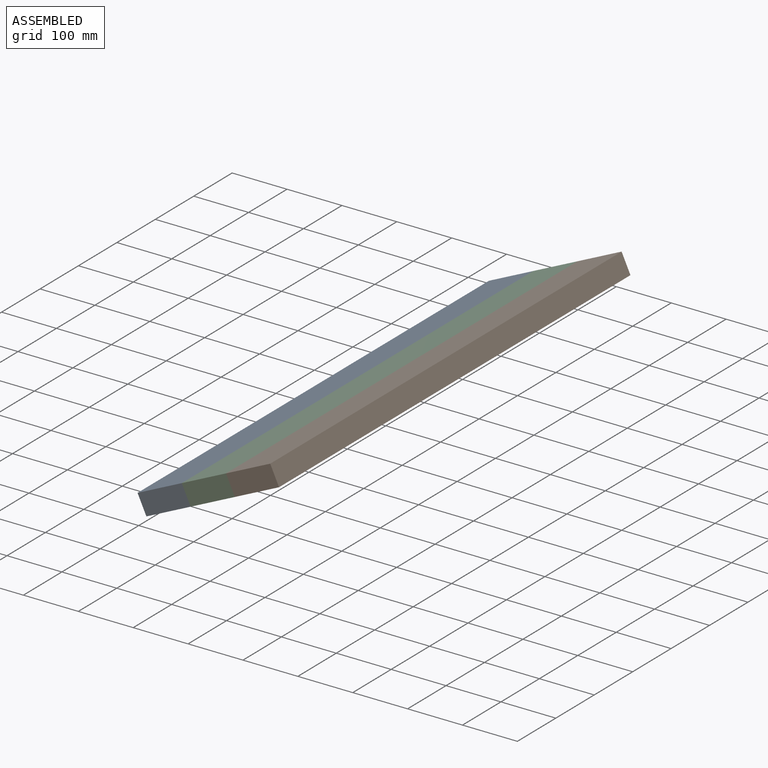
[diagram: assembled view]
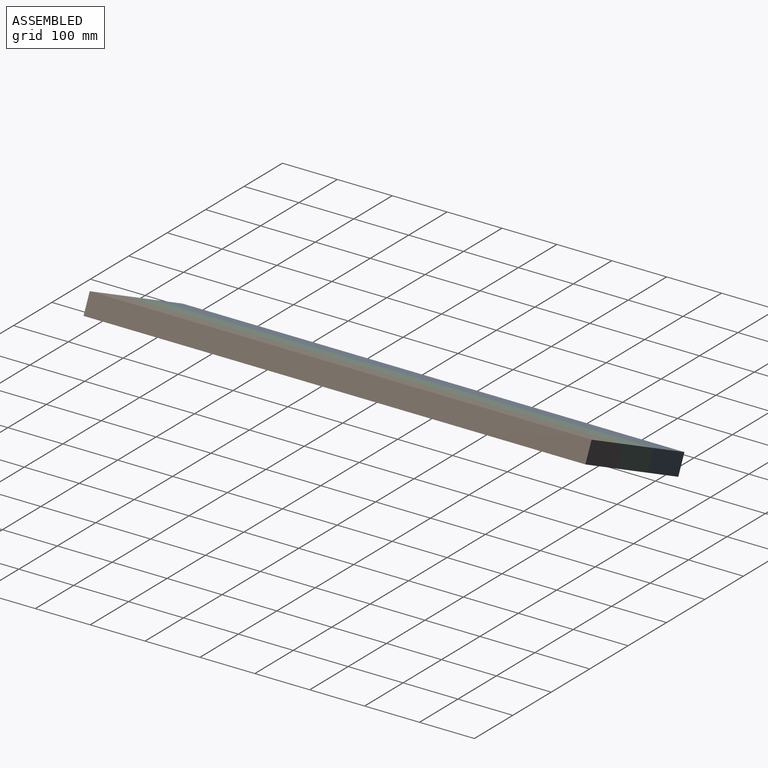
[diagram: assembled view, second angle]
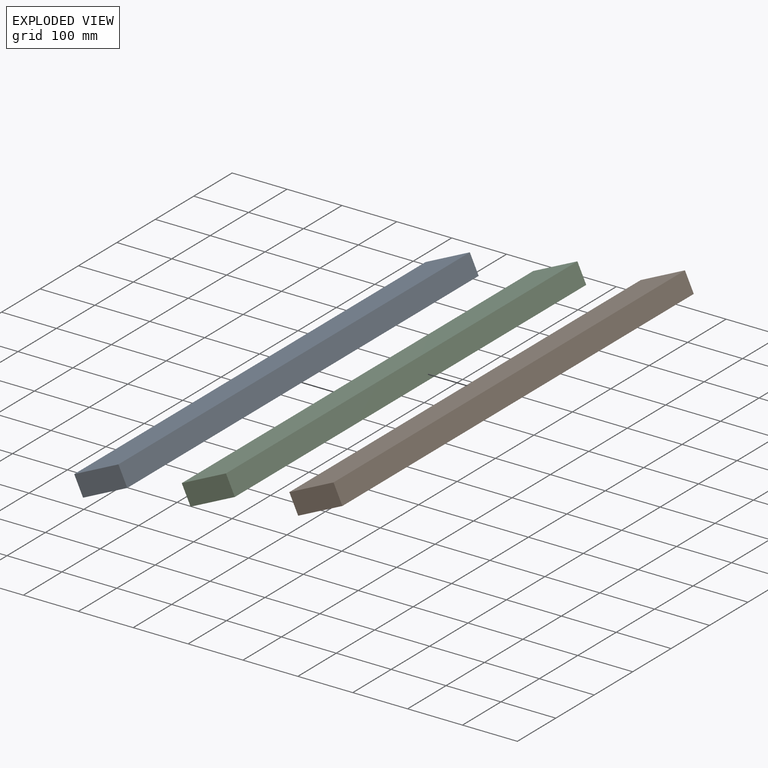
[diagram: exploded view]
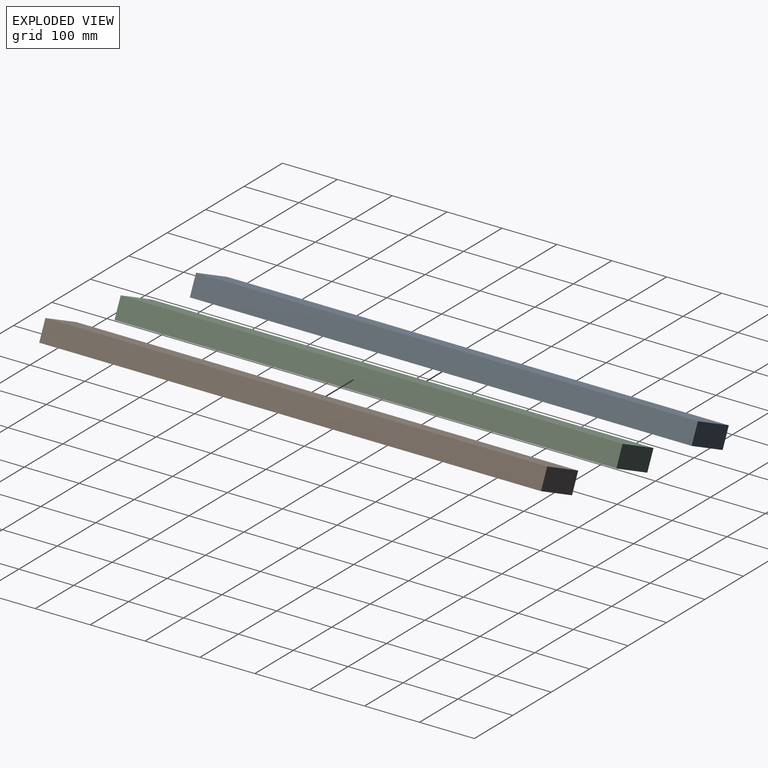
[diagram: exploded view, second angle]
ASSEMBLY  parts=3 mates=2
PART A: 6 faces, bbox 38.1x914.4x88.9 mm
  f0: plane 914.4x38.1mm, normal (0,0,1), area 34838.6mm2, adj f1,f3,f4,f5
  f1: plane 914.4x88.9mm, normal (-1,0,0), area 81290.2mm2, adj f0,f2,f4,f5
  f2: plane 914.4x38.1mm, normal (0,0,-1), area 34838.6mm2, adj f1,f3,f4,f5
  f3: plane 914.4x88.9mm, normal (1,0,0), area 81290.2mm2, adj f0,f2,f4,f5
  f4: plane 88.9x38.1mm, normal (0,-1,0), area 3387.1mm2, adj f0,f1,f2,f3
  f5: plane 88.9x38.1mm, normal (0,1,0), area 3387.1mm2, adj f0,f1,f2,f3
PART B: same geometry as A
PART C: same geometry as A
PLACE A rot(axis=(0,1,0),65deg) t=(375.93,114.8,-392.39)mm
PLACE B rot(axis=(0,1,0),65deg) t=(537.08,114.8,-317.25)mm
PLACE C rot(axis=(0,1,0),65deg) t=(456.51,114.8,-354.82)mm
MATE fastened C.f2 <-> A.f0  axis (-0.91,0,-0.42) through (416.22,114.8,-373.6)mm
MATE fastened C.f0 <-> B.f2  axis (0.91,0,0.42) through (496.79,114.8,-336.03)mm
